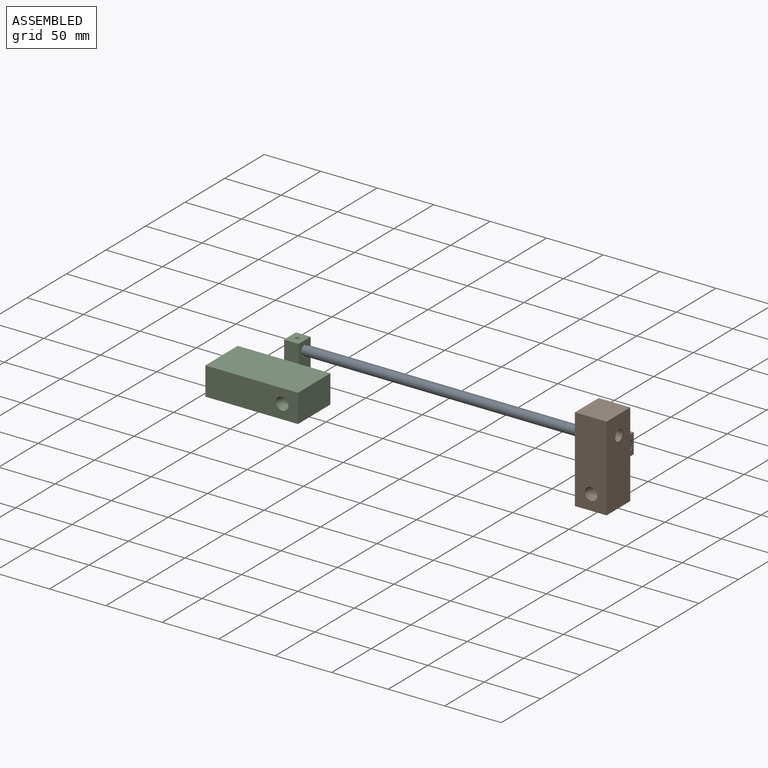
[diagram: assembled view]
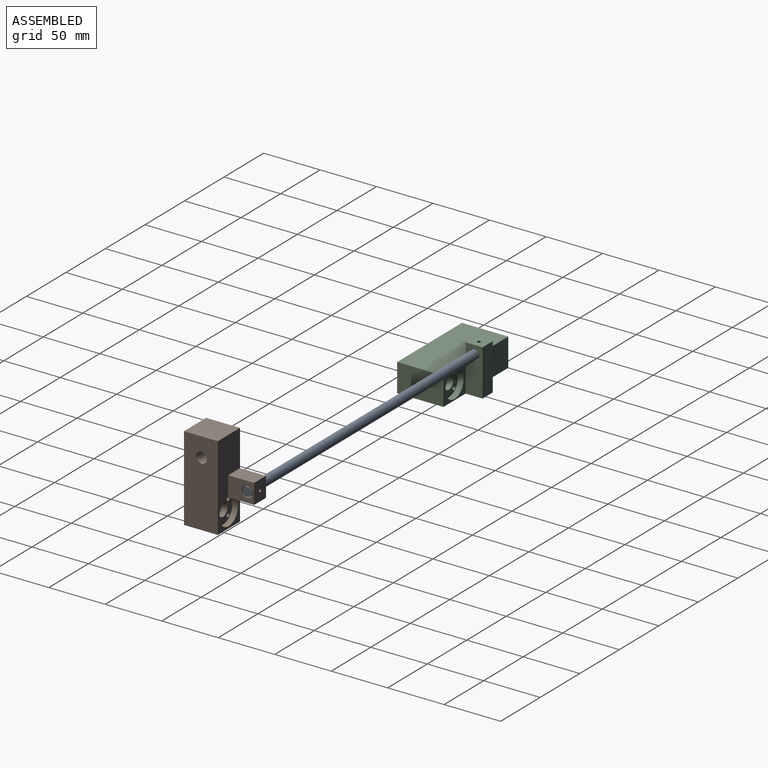
[diagram: assembled view, second angle]
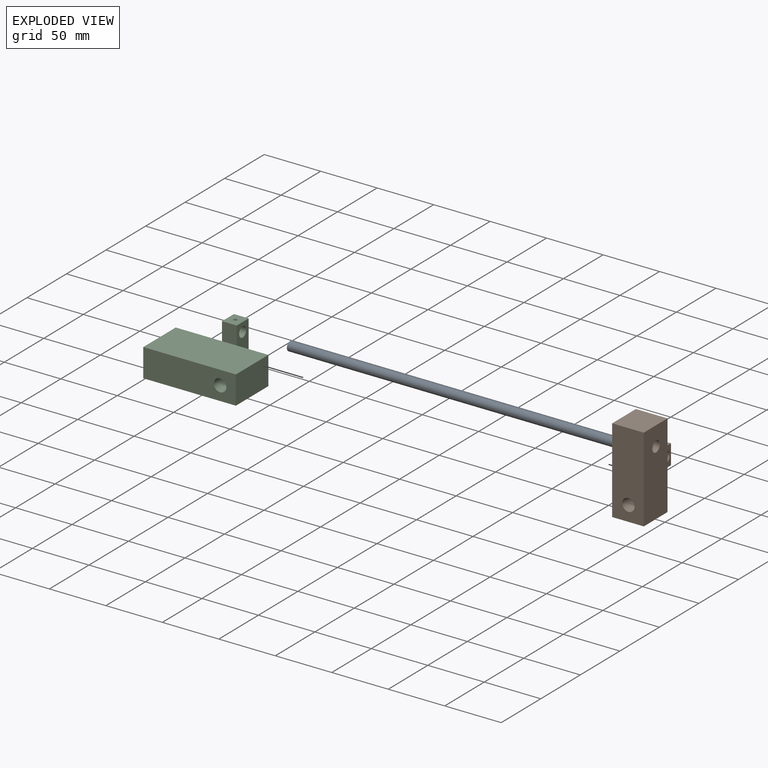
[diagram: exploded view]
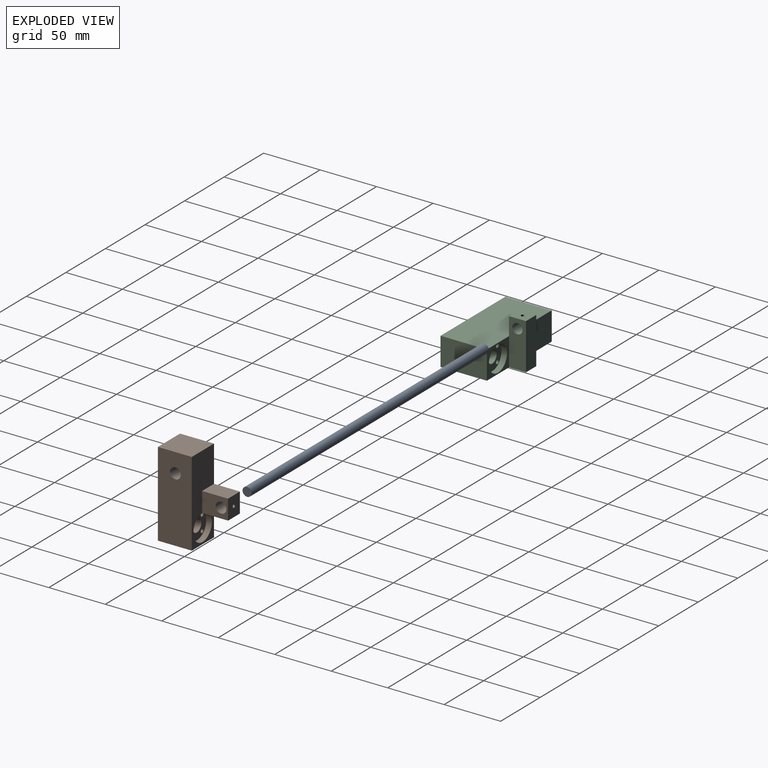
[diagram: exploded view, second angle]
ASSEMBLY  parts=3 mates=2
PART A: 3 faces, bbox 8x8x300 mm
  f0: cylinder r=4mm len=300mm, axis (0,0,-1), area 7539.8mm2, adj f1,f2
  f1: plane 8x8mm, normal (0,0,1), area 50.3mm2, adj f0
  f2: plane 8x8mm, normal (0,0,-1), area 50.3mm2, adj f0
PART B: 26 faces, bbox 53x28x75 mm
  f0: plane 23x13.28mm, normal (0,0,-1), area 305.5mm2, adj f4,f6,f7,f22
  f1: plane 23x17.57mm, normal (0,1,0), area 333.1mm2, adj f6,f7,f21,f22,f23
  f2: plane 30x28mm, normal (0,0,1), area 840mm2, adj f4,f5,f6,f18
  f3: plane 30x28mm, normal (0,0,-1), area 840mm2, adj f4,f5,f6,f18
  f4: plane 75x53mm, normal (0,-1,0), area 2131.5mm2, adj f0,f2,f3,f6,f18,f19,f21,f22
  f5: plane 75x30mm, normal (0,1,0), area 2179.1mm2, adj f2,f3,f6,f18,f24
  f6: plane 75x28mm, normal (-1,0,0), area 1402.4mm2, adj f0,f1,f2,f3,f4,f5,f7,f21
  f7: cylinder r=11.75mm len=28mm, axis (-1,0,0), area 408.7mm2, adj f0,f1,f6,f8,f22
  f8: plane 23.5x23.5mm, normal (-1,0,0), area 300.2mm2, adj f7,f10,f12,f14,f16,f17
  f9: plane 3.5x3.5mm, normal (-1,0,0), area 9.6mm2, adj f10
  f10: cylinder r=1.75mm len=10mm, axis (-1,0,0), area 110mm2, adj f8,f9
  f11: plane 3.5x3.5mm, normal (-1,0,0), area 9.6mm2, adj f12
  f12: cylinder r=1.75mm len=10mm, axis (-1,0,0), area 110mm2, adj f8,f11
  f13: plane 3.5x3.5mm, normal (-1,0,0), area 9.6mm2, adj f14
  f14: cylinder r=1.75mm len=10mm, axis (-1,0,0), area 110mm2, adj f8,f13
  f15: plane 3.5x3.5mm, normal (-1,0,0), area 9.6mm2, adj f16
  f16: cylinder r=1.75mm len=10mm, axis (-1,0,0), area 110mm2, adj f8,f15
  f17: cylinder r=5.5mm len=25mm, axis (-1,0,0), area 863.9mm2, adj f8,f18
  f18: plane 75x28mm, normal (1,0,0), area 2005mm2, adj f2,f3,f4,f5,f17
  f19: cylinder r=12mm len=24mm, axis (0,-1,0), area 565.5mm2, adj f4,f20
  f20: plane 24x24mm, normal (0,-1,0), area 381.5mm2, adj f19,f24
  f21: plane 23x15mm, normal (0,0,1), area 345mm2, adj f1,f4,f6,f22
  f22: plane 17.6x15mm, normal (-1,0,0), area 256.8mm2, adj f0,f1,f4,f7,f21,f25
  f23: cylinder r=4.75mm len=15mm, axis (0,-1,0), area 440.5mm2, adj f1,f4,f25
  f24: cylinder r=4.75mm len=20.5mm, axis (0,-1,0), area 611.8mm2, adj f5,f20
  f25: cylinder r=1.5mm len=3mm, axis (-1,0,0), area 15.3mm2, adj f22,f23
PART C: 25 faces, bbox 82x56x41 mm
  f0: plane 28x25mm, normal (0,-1,0), area 284.5mm2, adj f5,f6,f7,f8,f20
  f1: cylinder r=5.5mm len=36mm, axis (0,-1,0), area 1244.1mm2, adj f4,f9
  f2: plane 41x25mm, normal (0,-1,0), area 1025mm2, adj f3,f6,f7,f19
  f3: plane 41x25mm, normal (1,0,0), area 1025mm2, adj f2,f4,f6,f7
  f4: plane 82x25mm, normal (0,1,0), area 1955mm2, adj f1,f3,f5,f6,f7
  f5: plane 41x25mm, normal (-1,0,0), area 1025mm2, adj f0,f4,f6,f7
  f6: plane 82x56mm, normal (0,0,-1), area 3557mm2, adj f0,f2,f3,f4,f5,f19,f20,f21
  f7: plane 82x41mm, normal (0,0,1), area 3362mm2, adj f0,f2,f3,f4,f5,f18
  f8: cylinder r=11.5mm len=23mm, axis (0,-1,0), area 361.3mm2, adj f0,f9
  f9: plane 23x23mm, normal (0,-1,0), area 282mm2, adj f1,f8,f11,f13,f15,f17
  f10: plane 3.5x3.5mm, normal (0,-1,0), area 9.6mm2, adj f11
  f11: cylinder r=1.75mm len=10mm, axis (0,-1,0), area 110mm2, adj f9,f10
  f12: plane 3.5x3.5mm, normal (0,-1,0), area 9.6mm2, adj f13
  f13: cylinder r=1.75mm len=10mm, axis (0,-1,0), area 110mm2, adj f9,f12
  f14: plane 3.5x3.5mm, normal (0,-1,0), area 9.6mm2, adj f15
  f15: cylinder r=1.75mm len=10mm, axis (0,-1,0), area 110mm2, adj f9,f14
  f16: plane 3.5x3.5mm, normal (0,-1,0), area 9.6mm2, adj f17
  f17: cylinder r=1.75mm len=10mm, axis (0,-1,0), area 110mm2, adj f9,f16
  f18: plane 16x13mm, normal (0,1,0), area 208mm2, adj f7,f19,f20,f22
  f19: plane 41x15mm, normal (1,0,0), area 551.4mm2, adj f2,f6,f18,f21,f22,f23
  f20: plane 41x15mm, normal (-1,0,0), area 551.4mm2, adj f0,f6,f18,f21,f22,f23
  f21: plane 41x13mm, normal (0,-1,0), area 533mm2, adj f6,f19,f20,f22
  f22: plane 15x13mm, normal (0,0,1), area 187.9mm2, adj f18,f19,f20,f21,f24
  f23: cylinder r=4.5mm len=13mm, axis (-1,0,0), area 360.4mm2, adj f19,f20,f24
  f24: cylinder r=1.5mm len=3.76mm, axis (0,0,1), area 34.2mm2, adj f22,f23
PLACE A rot(axis=(0,1,0),90deg) t=(-447.59,-27.8,81.72)mm
PLACE B rot(axis=(0,0,-1),90deg) t=(-148.59,-72.05,72.72)mm
PLACE C rot(axis=(0,0,-1),180deg) t=(-447.59,-55.8,73.72)mm
MATE fastened C.f23 <-> A.f0  axis (-1,0,0) through (-447.59,-27.8,81.72)mm
MATE fastened A.f0 <-> B.f23  axis (1,0,0) through (-147.59,-27.8,81.72)mm
